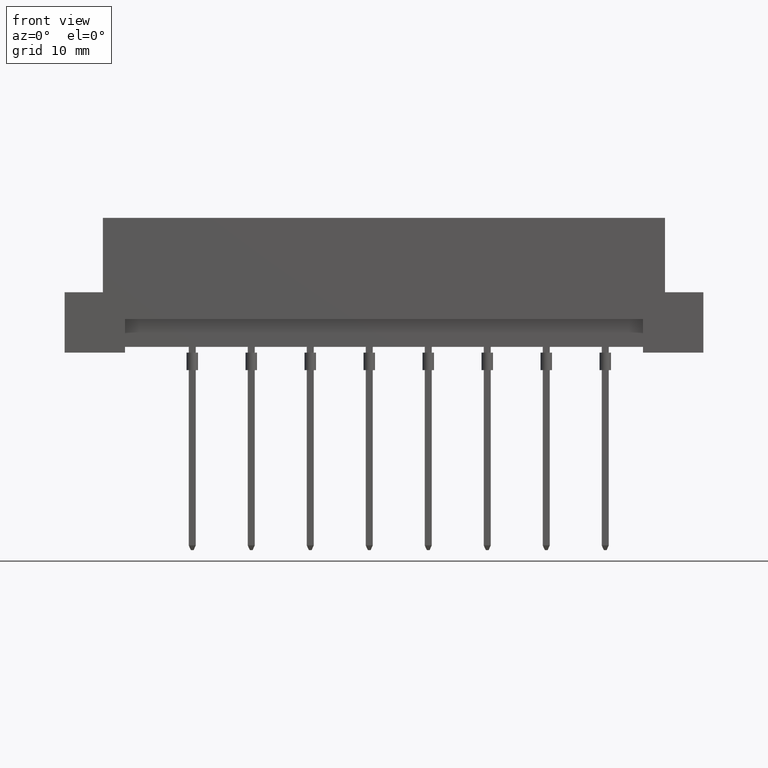
[diagram: clean part render]
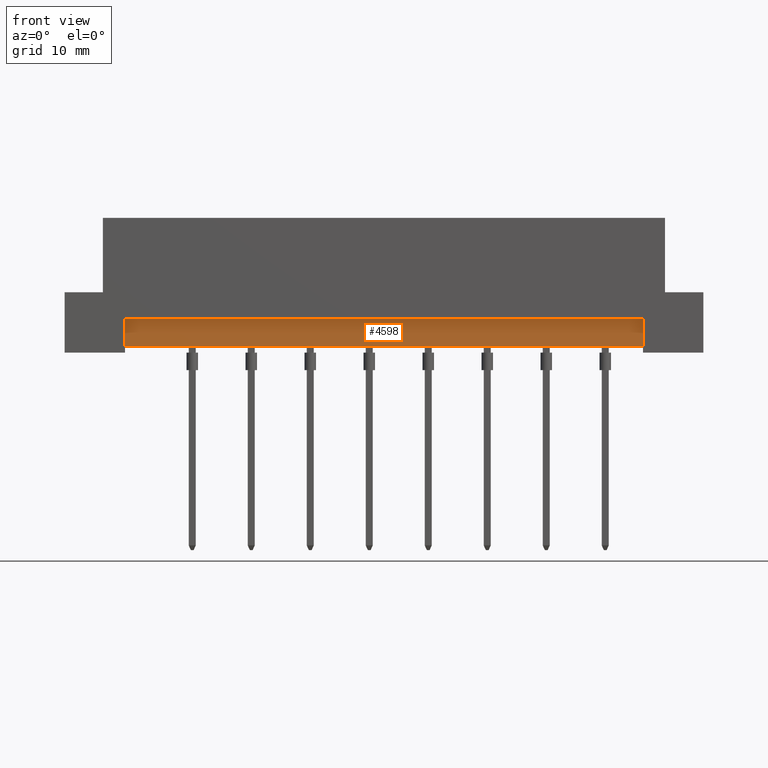
[diagram: same view with one face highlighted and labeled with its STEP entity id]
A machine part, front view. The second image highlights one B-rep face of the part: STEP entity #4598.
In plain terms, the highlighted planar face has unit normal (0, 1, 0).
Its self-contained STEP definition (entity closure, byte-faithful):
#388 = CARTESIAN_POINT ( 'NONE',  ( 22.29999999999999716, 1.200000000000000622, 2.899999999999999911 ) ) ;
#483 = EDGE_CURVE ( 'NONE', #2965, #8868, #1168, .T. ) ;
#527 = ORIENTED_EDGE ( 'NONE', *, *, #483, .F. ) ;
#902 = VECTOR ( 'NONE', #1912, 1000.000000000000000 ) ;
#913 = PLANE ( 'NONE',  #1379 ) ;
#1024 = CARTESIAN_POINT ( 'NONE',  ( -22.29999999999999716, 1.200000000000000622, 0.5000000000000000000 ) ) ;
#1068 = LINE ( 'NONE', #3980, #6640 ) ;
#1168 = LINE ( 'NONE', #6246, #902 ) ;
#1379 = AXIS2_PLACEMENT_3D ( 'NONE', #2112, #3767, #3626 ) ;
#1469 = FACE_OUTER_BOUND ( 'NONE', #6475, .T. ) ;
#1524 = CARTESIAN_POINT ( 'NONE',  ( 22.29999999999999716, 1.200000000000000622, 0.5000000000000000000 ) ) ;
#1831 = EDGE_CURVE ( 'NONE', #2965, #7748, #1068, .T. ) ;
#1912 = DIRECTION ( 'NONE',  ( 1.000000000000000000, -0.0000000000000000000, -0.0000000000000000000 ) ) ;
#2112 = CARTESIAN_POINT ( 'NONE',  ( 22.29999999999999716, 1.200000000000000622, 2.899999999999999911 ) ) ;
#2368 = EDGE_CURVE ( 'NONE', #7748, #2920, #2412, .T. ) ;
#2412 = LINE ( 'NONE', #3026, #4226 ) ;
#2570 = DIRECTION ( 'NONE',  ( -0.0000000000000000000, -0.0000000000000000000, -1.000000000000000000 ) ) ;
#2920 = VERTEX_POINT ( 'NONE', #1524 ) ;
#2965 = VERTEX_POINT ( 'NONE', #7322 ) ;
#3026 = CARTESIAN_POINT ( 'NONE',  ( 22.30000000000000071, 1.200000000000000622, 0.5000000000000000000 ) ) ;
#3214 = DIRECTION ( 'NONE',  ( 1.000000000000000000, 0.0000000000000000000, 0.0000000000000000000 ) ) ;
#3626 = DIRECTION ( 'NONE',  ( 0.0000000000000000000, 0.0000000000000000000, 1.000000000000000000 ) ) ;
#3767 = DIRECTION ( 'NONE',  ( 0.0000000000000000000, 1.000000000000000000, -0.0000000000000000000 ) ) ;
#3928 = DIRECTION ( 'NONE',  ( -0.0000000000000000000, -0.0000000000000000000, -1.000000000000000000 ) ) ;
#3980 = CARTESIAN_POINT ( 'NONE',  ( -22.29999999999999716, 1.200000000000000622, 2.899999999999999911 ) ) ;
#4226 = VECTOR ( 'NONE', #3214, 1000.000000000000000 ) ;
#4598 = ADVANCED_FACE ( 'NONE', ( #1469 ), #913, .F. ) ;
#4713 = ORIENTED_EDGE ( 'NONE', *, *, #2368, .T. ) ;
#5264 = EDGE_CURVE ( 'NONE', #8868, #2920, #6826, .T. ) ;
#6246 = CARTESIAN_POINT ( 'NONE',  ( 22.29999999999999716, 1.200000000000000622, 2.899999999999999911 ) ) ;
#6475 = EDGE_LOOP ( 'NONE', ( #4713, #8225, #527, #8493 ) ) ;
#6640 = VECTOR ( 'NONE', #3928, 1000.000000000000000 ) ;
#6826 = LINE ( 'NONE', #388, #9193 ) ;
#7322 = CARTESIAN_POINT ( 'NONE',  ( -22.29999999999999716, 1.200000000000000622, 2.899999999999999911 ) ) ;
#7748 = VERTEX_POINT ( 'NONE', #1024 ) ;
#7975 = CARTESIAN_POINT ( 'NONE',  ( 22.29999999999999716, 1.200000000000000622, 2.899999999999999911 ) ) ;
#8225 = ORIENTED_EDGE ( 'NONE', *, *, #5264, .F. ) ;
#8493 = ORIENTED_EDGE ( 'NONE', *, *, #1831, .T. ) ;
#8868 = VERTEX_POINT ( 'NONE', #7975 ) ;
#9193 = VECTOR ( 'NONE', #2570, 1000.000000000000000 ) ;